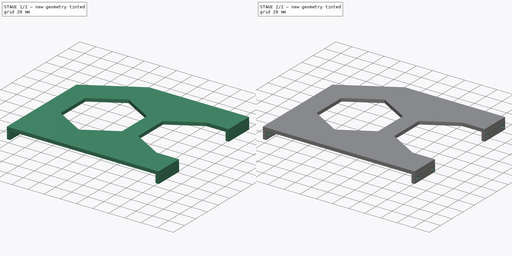
[diagram: build sequence overview — one tinted view per stage of 2, left to right]
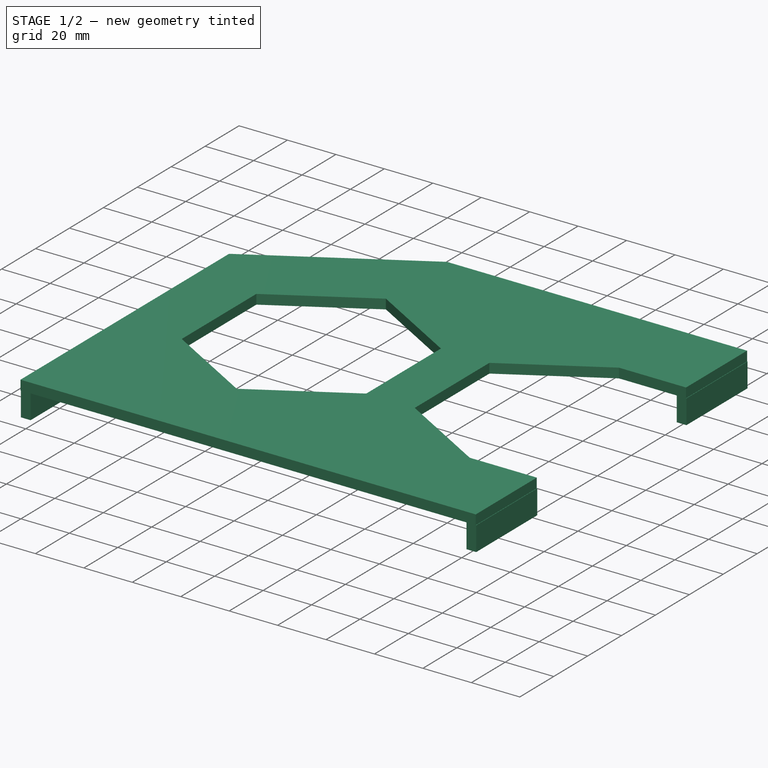
[diagram: stage 1 of 2 — iso view after this stage's code; geometry added in this stage tinted green]
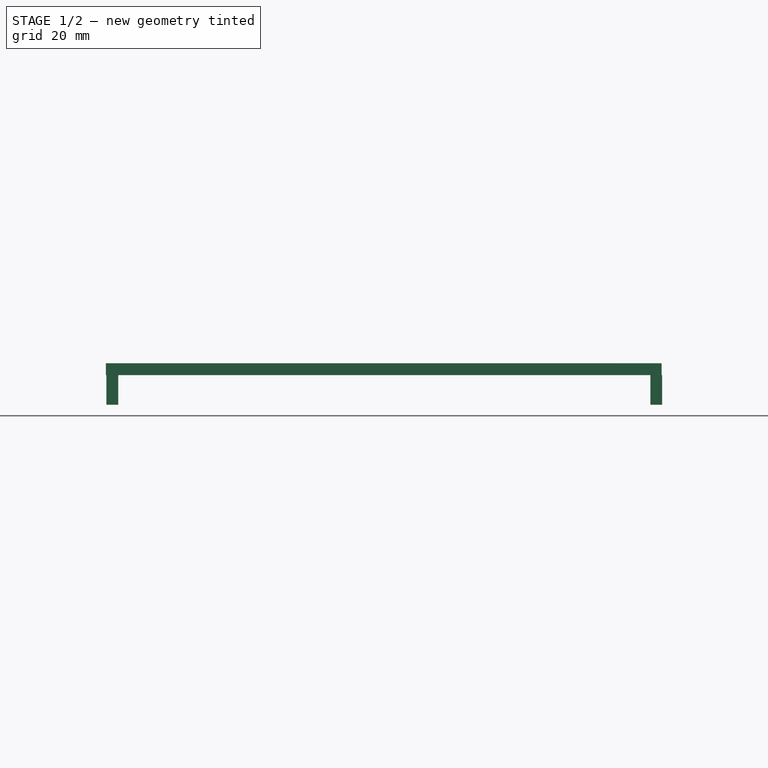
[diagram: stage 1 of 2 — front view after this stage's code; geometry added in this stage tinted green]
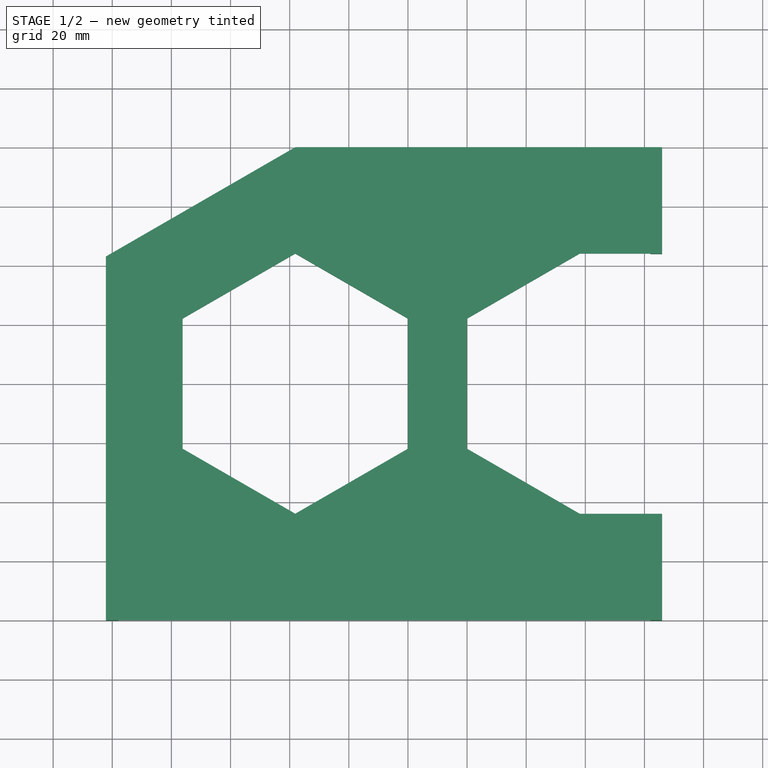
[diagram: stage 1 of 2 — top view after this stage's code; geometry added in this stage tinted green]
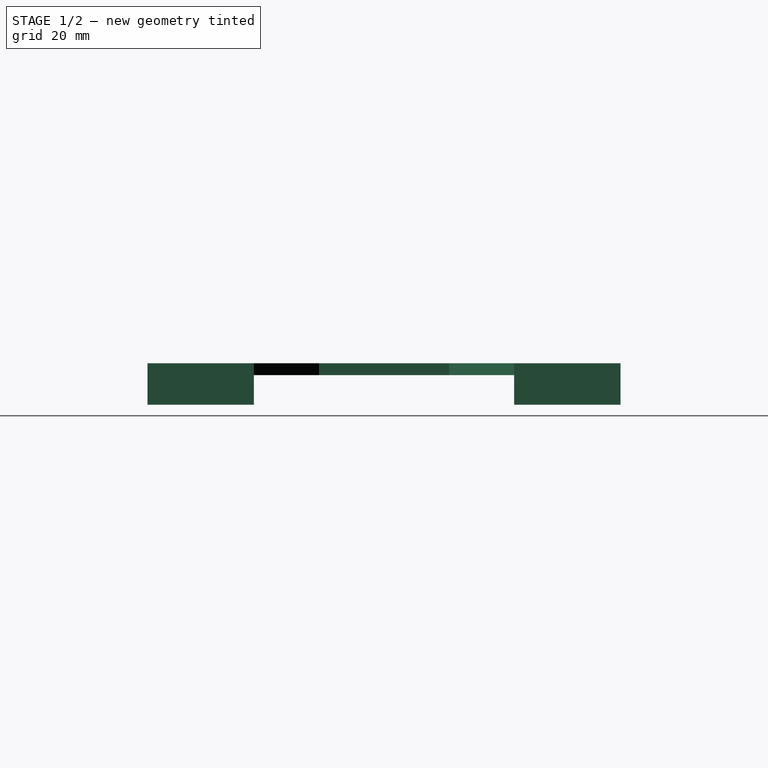
[diagram: stage 1 of 2 — right view after this stage's code; geometry added in this stage tinted green]
FCSTD DOCUMENT  (FreeCAD 0.21R33771 (Git))
Label: reactor-stand-A.v0.2
License: All rights reserved
LicenseURL: https://en.wikipedia.org/wiki/All_rights_reserved
objects: Sketcher::SketchObject×4, PartDesign::Pad×2, PartDesign::Pocket×2, PartDesign::Body×1
note: 13 computed .brp shape members not serialized (recipe doc carries the construction recipe); baked Part::Feature solids carry a one-line shape summary decoded from their .brp

FEATURE [Sketcher::SketchObject] Sketch
  FullyConstrained = true
  MapMode = 5
  Support = -> [XY_Plane]
  sketch-geometry (19):
    g0: LineSegment StartX=65.8151 StartY=80 StartZ=0 EndX=65.8151 EndY=44 EndZ=0
    g1: LineSegment StartX=65.8151 StartY=-80 StartZ=0 EndX=-122.185 EndY=-80 EndZ=0
    g2: LineSegment StartX=65.8151 StartY=-44 StartZ=0 EndX=38.1051 EndY=-44 EndZ=0
    g3: LineSegment StartX=-58.1051 StartY=80 StartZ=0 EndX=-122.185 EndY=43.0035 EndZ=0
    g4: LineSegment StartX=38.1051 StartY=44 StartZ=0 EndX=-7.1e-15 EndY=22 EndZ=0
    g5: LineSegment StartX=-7.1e-15 StartY=22 StartZ=0 EndX=5.1e-15 EndY=-22 EndZ=0
    g6: LineSegment StartX=5.1e-15 StartY=-22 StartZ=0 EndX=38.1051 EndY=-44 EndZ=0
    g7: Circle CenterX=38.1051 CenterY=0 CenterZ=0 NormalX=0 NormalY=0 NormalZ=1 AngleXU=0 Radius=44
    g8: LineSegment StartX=-58.1051 StartY=80 StartZ=0 EndX=65.8151 EndY=80 EndZ=0
    g9: LineSegment StartX=38.1051 StartY=44 StartZ=0 EndX=65.8151 EndY=44 EndZ=0
    g10: LineSegment StartX=-122.185 StartY=43.0035 StartZ=0 EndX=-122.185 EndY=-80 EndZ=0
    g11: LineSegment StartX=65.8151 StartY=-44 StartZ=0 EndX=65.8151 EndY=-80 EndZ=0
    g12: LineSegment StartX=-58.1051 StartY=44 StartZ=0 EndX=-96.2102 EndY=22 EndZ=0
    g13: LineSegment StartX=-96.2102 StartY=22 StartZ=0 EndX=-96.2102 EndY=-22 EndZ=0
    g14: LineSegment StartX=-96.2102 StartY=-22 StartZ=0 EndX=-58.1051 EndY=-44 EndZ=0
    g15: LineSegment StartX=-58.1051 StartY=-44 StartZ=0 EndX=-20 EndY=-22 EndZ=0
    g16: LineSegment StartX=-20 StartY=-22 StartZ=0 EndX=-20 EndY=22 EndZ=0
    g17: LineSegment StartX=-20 StartY=22 StartZ=0 EndX=-58.1051 EndY=44 EndZ=0
    g18: Circle CenterX=-58.1051 CenterY=0 CenterZ=0 NormalX=0 NormalY=0 NormalZ=1 AngleXU=0 Radius=44
  constraints (53):
    c: Horizontal(g2)
    c: Coincident(g4,g5)
    c: Coincident(g5,g6)
    c: PointOnObject(g4,g7)
    c: PointOnObject(g4,g7)
    c: PointOnObject(g5,g7)
    c: PointOnObject(g6,g7)
    c: PointOnObject(g7,g-1)
    c: DistanceX(g4,g6) = 0
    c: Angle(g2,g6,g6) = 2.61799
    c: Angle(g5,g6,g5) = 1.0472
    c: DistanceX(g6,g2) = 27.71
    c: DistanceY(g2,g0) = 88
    c: Coincident(g2,g6)
    c: Coincident(g9,g4)
    c: Coincident(g9,g0)
    c: Horizontal(g9)
    c: Coincident(g10,g1)
    c: Vertical(g10)
    c: Coincident(g10,g3)
    c: Coincident(g12,g13)
    c: Coincident(g13,g14)
    c: Coincident(g14,g15)
    c: Coincident(g15,g16)
    c: Coincident(g16,g17)
    c: Coincident(g17,g12)
    c: Equal(g12, g13-g17) x5
    c: PointOnObject(g12,g18)
    c: PointOnObject(g13,g18)
    c: PointOnObject(g14,g18)
    c: PointOnObject(g15,g18)
    c: PointOnObject(g16,g18)
    c: PointOnObject(g17,g18)
    c: PointOnObject(g18,g-1)
    c: Distance(g12,g14) = 88
    c: Parallel(g16,g5)
    c: Equal(g6,g5)
    c: Parallel(g3,g12)
    c: Coincident(g8,g3)
    c: Horizontal(g1)
    c: DistanceY(g1,g0) = 160
    c: Distance(g1) = 188
    c: Coincident(g1,g11)
    c: Vertical(g11)
    c: Coincident(g2,g11)
    c: Coincident(g0,g8)
    c: Horizontal(g8)
    c: Equal(g2,g9)
    c: Vertical(g0)
    c: Equal(g0,g11)
    c: DistanceX(g16,g4) = 20
    c: PointOnObject(g-1,g5)
    c: DistanceX(g12,g3) = 0
FEATURE [PartDesign::Pad] Pad
  Direction = (0,0,1)
  Length = 4
  Length2 = 10
  Profile = -> Sketch
  ReferenceAxis = -> Sketch [N_Axis]
  Type = 0
FEATURE [Sketcher::SketchObject] Sketch001
  FullyConstrained = true
  MapMode = 5
  Placement = pos=(0,0,0) rot=(1,0,0;3.14159rad)
  Support = -> [Pad]
  sketch-geometry (12):
    g0: LineSegment StartX=66 StartY=80 StartZ=0 EndX=62 EndY=80 EndZ=0
    g1: LineSegment StartX=62 StartY=80 StartZ=0 EndX=62 EndY=44 EndZ=0
    g2: LineSegment StartX=62 StartY=44 StartZ=0 EndX=66 EndY=44 EndZ=0
    g3: LineSegment StartX=66 StartY=44 StartZ=0 EndX=66 EndY=80 EndZ=0
    g4: LineSegment StartX=66 StartY=-80 StartZ=0 EndX=62 EndY=-80 EndZ=0
    g5: LineSegment StartX=62 StartY=-80 StartZ=0 EndX=62 EndY=-44 EndZ=0
    g6: LineSegment StartX=62 StartY=-44 StartZ=0 EndX=66 EndY=-44 EndZ=0
    g7: LineSegment StartX=66 StartY=-44 StartZ=0 EndX=66 EndY=-80 EndZ=0
    g8: LineSegment StartX=-118 StartY=44 StartZ=0 EndX=-122 EndY=44 EndZ=0
    g9: LineSegment StartX=-122 StartY=44 StartZ=0 EndX=-122 EndY=80 EndZ=0
    g10: LineSegment StartX=-122 StartY=80 StartZ=0 EndX=-118 EndY=80 EndZ=0
    g11: LineSegment StartX=-118 StartY=80 StartZ=0 EndX=-118 EndY=44 EndZ=0
  constraints (36):
    c: Coincident(g0,g1)
    c: Coincident(g1,g2)
    c: Coincident(g2,g3)
    c: Coincident(g3,g0)
    c: Horizontal(g0)
    c: Horizontal(g2)
    c: Vertical(g1)
    c: Vertical(g3)
    c: DistanceX(g1,g2) = 4
    c: DistanceY(g1,g0) = 36
    c: DistanceX(g-1,g1) = 62
    c: DistanceY(g-1,g1) = 44
    c: Coincident(g4,g5)
    c: Coincident(g5,g6)
    c: Coincident(g6,g7)
    c: Coincident(g7,g4)
    c: Horizontal(g4)
    c: Horizontal(g6)
    c: Vertical(g5)
    c: Vertical(g7)
    c: DistanceY(g4,g5) = 36
    c: DistanceY(g5,g-1) = 44
    c: DistanceX(g6,g2) = 0
    c: DistanceX(g5,g1) = 0
    c: Coincident(g8,g9)
    c: Coincident(g9,g10)
    c: Coincident(g10,g11)
    c: Coincident(g11,g8)
    c: Horizontal(g8)
    c: Horizontal(g10)
    c: Vertical(g9)
    c: Vertical(g11)
    c: DistanceX(g8,g8) = 4
    c: DistanceY(g1,g8) = 0
    c: DistanceY(g10,g0) = 0
    c: DistanceX(g8,g1) = 180
FEATURE [PartDesign::Pad] Pad001
  BaseFeature = -> Pad
  Direction = (0,0,-1)
  Length = 10
  Length2 = 10
  Profile = -> Sketch001
  ReferenceAxis = -> Sketch001 [N_Axis]
  Type = 0
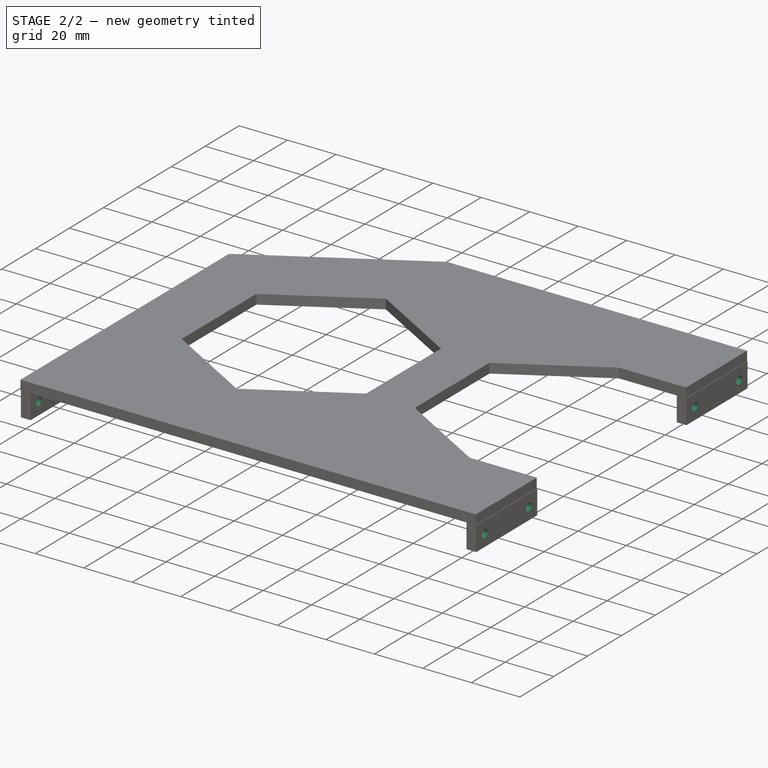
[diagram: stage 2 of 2 — iso view after this stage's code; geometry added in this stage tinted green]
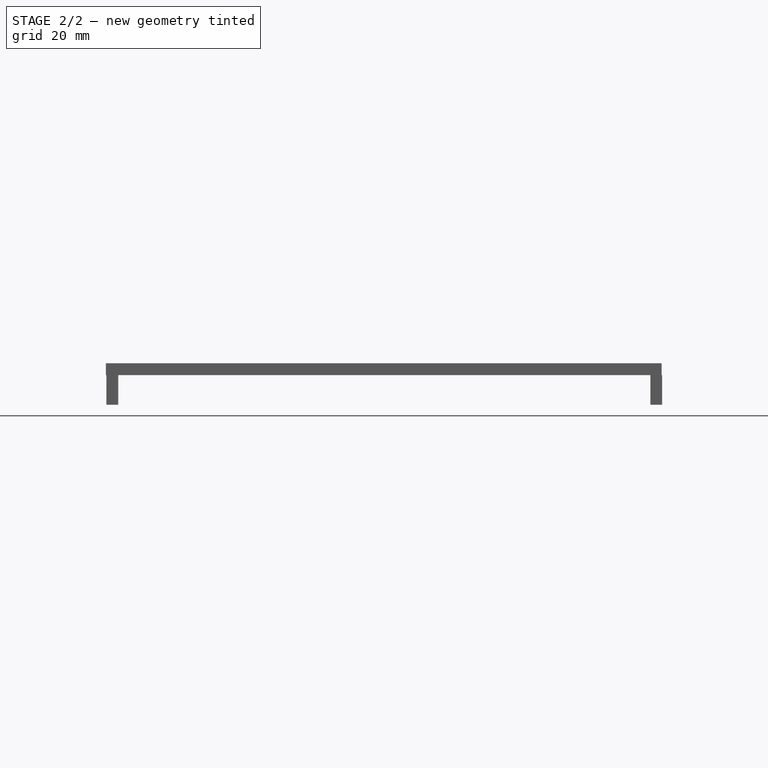
[diagram: stage 2 of 2 — front view after this stage's code; geometry added in this stage tinted green]
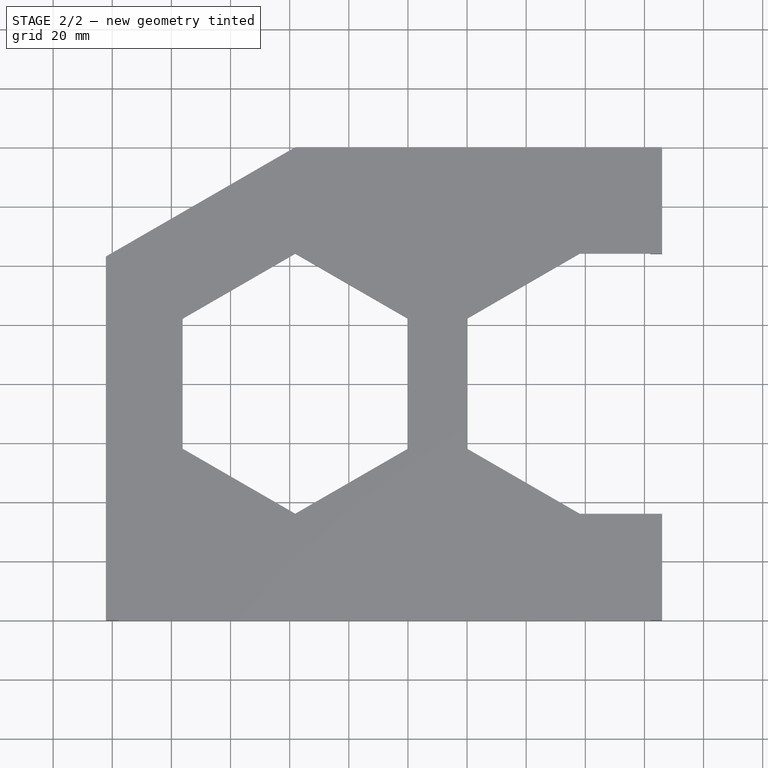
[diagram: stage 2 of 2 — top view after this stage's code; geometry added in this stage tinted green]
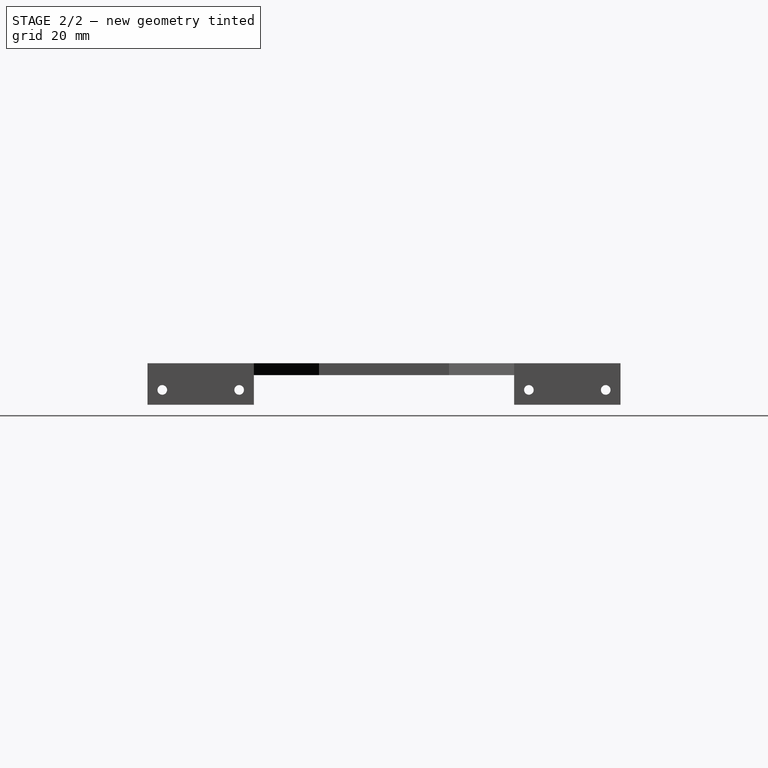
[diagram: stage 2 of 2 — right view after this stage's code; geometry added in this stage tinted green]
FEATURE [Sketcher::SketchObject] Sketch002
  FullyConstrained = true
  MapMode = 5
  Placement = pos=(62,0,0) rot=(0.57735,-0.57735,-0.57735;2.0944rad)
  Support = -> [Pad001]
  sketch-geometry (4):
    g0: Circle CenterX=75 CenterY=-5 CenterZ=0 NormalX=0 NormalY=0 NormalZ=1 AngleXU=0 Radius=1.625
    g1: Circle CenterX=49 CenterY=-5 CenterZ=0 NormalX=0 NormalY=0 NormalZ=1 AngleXU=0 Radius=1.625
    g2: Circle CenterX=-49 CenterY=-5 CenterZ=0 NormalX=0 NormalY=0 NormalZ=1 AngleXU=0 Radius=1.625
    g3: Circle CenterX=-75 CenterY=-5 CenterZ=0 NormalX=0 NormalY=0 NormalZ=1 AngleXU=0 Radius=1.625
  constraints (12):
    c: Equal(g0,g1)
    c: Equal(g0,g2)
    c: Equal(g0,g3)
    c: Diameter(g0) = 3.25
    c: DistanceY(g0,g1) = 0
    c: DistanceY(g3,g2) = 0
    c: DistanceY(g2,g-1) = 5
    c: DistanceX(g1,g0) = 26
    c: DistanceX(g3,g2) = 26
    c: DistanceX(g-1,g1) = 49
    c: DistanceX(g2,g-1) = 49
    c: DistanceY(g1,g2) = 0
FEATURE [PartDesign::Pocket] Pocket
  BaseFeature = -> Pad001
  Direction = (1,0,0)
  Length = 5
  Length2 = 5
  Profile = -> Sketch002
  ReferenceAxis = -> Sketch002 [N_Axis]
  Type = 1
FEATURE [Sketcher::SketchObject] Sketch003
  FullyConstrained = true
  MapMode = 5
  Placement = pos=(-118,0,0) rot=(0.57735,0.57735,0.57735;2.0944rad)
  Support = -> [Pocket]
  sketch-geometry (2):
    g0: Circle CenterX=-49 CenterY=-5 CenterZ=0 NormalX=0 NormalY=0 NormalZ=1 AngleXU=0 Radius=1.625
    g1: Circle CenterX=-75 CenterY=-5 CenterZ=0 NormalX=0 NormalY=0 NormalZ=1 AngleXU=0 Radius=1.625
  constraints (6):
    c: Equal(g1,g0)
    c: Diameter(g1) = 3.25
    c: DistanceX(g1,g0) = 26
    c: DistanceY(g0,g-1) = 5
    c: DistanceY(g0,g1) = 0
    c: DistanceX(g0,g-1) = 49
FEATURE [PartDesign::Pocket] Pocket001
  BaseFeature = -> Pocket
  Direction = (-1,0,0)
  Length = 5
  Length2 = 5
  Profile = -> Sketch003
  ReferenceAxis = -> Sketch003 [N_Axis]
  Type = 1
FEATURE [PartDesign::Body] Body
  Group = -> [Sketch,Pad,Sketch001,Pad001,Sketch002,Pocket,Sketch003,Pocket001]
  Origin = -> Origin
  Tip = -> Pocket001
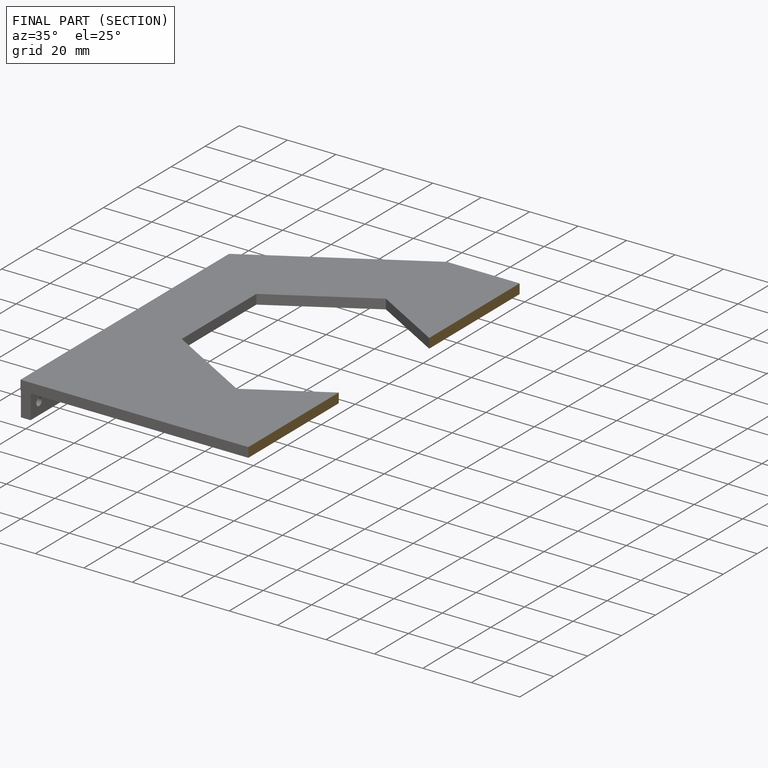
[diagram: finished part — half-section view (interior)]
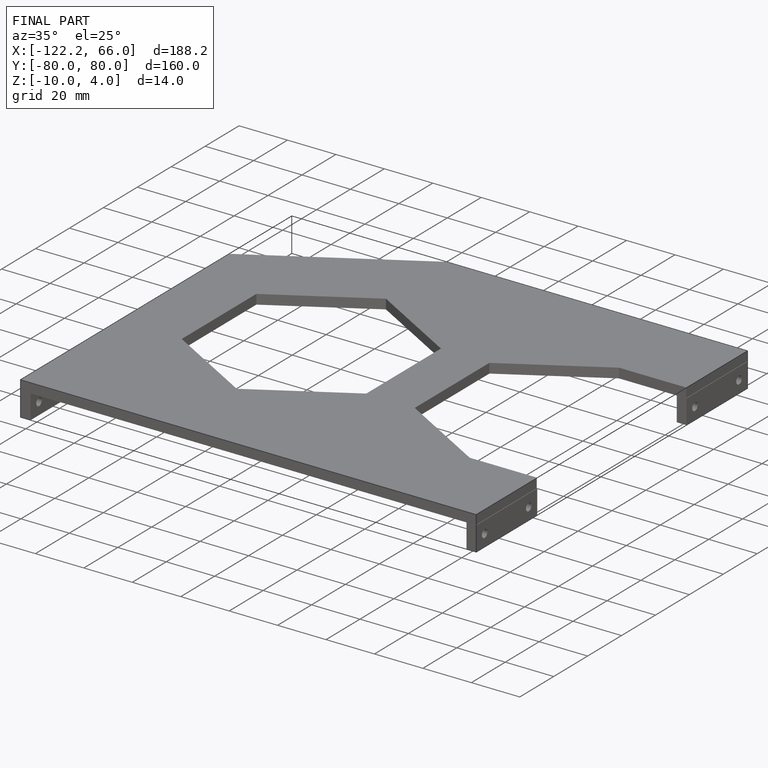
[diagram: finished part — iso view with bounding-box wireframe]
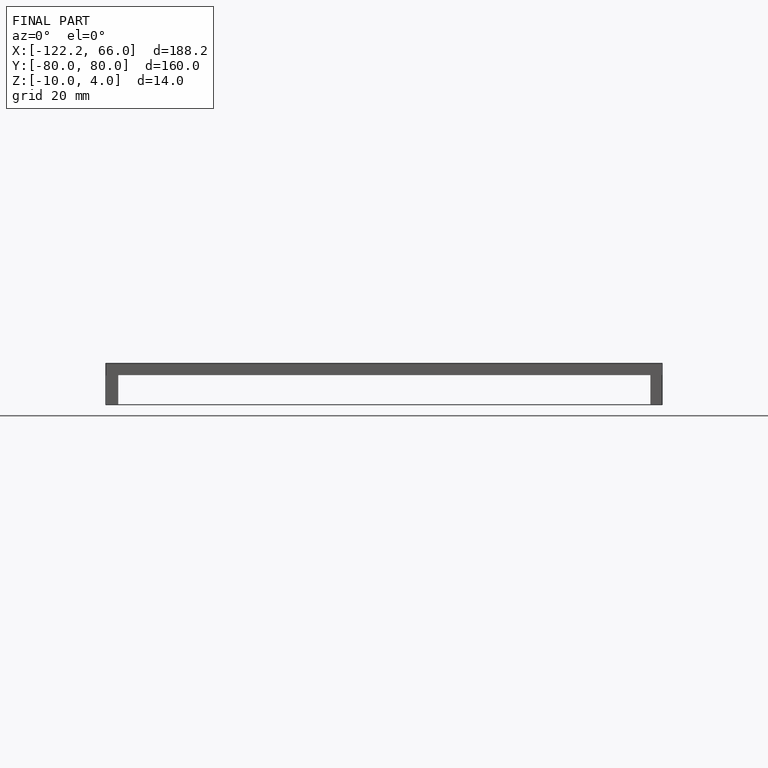
[diagram: finished part — front view with bounding-box wireframe]
